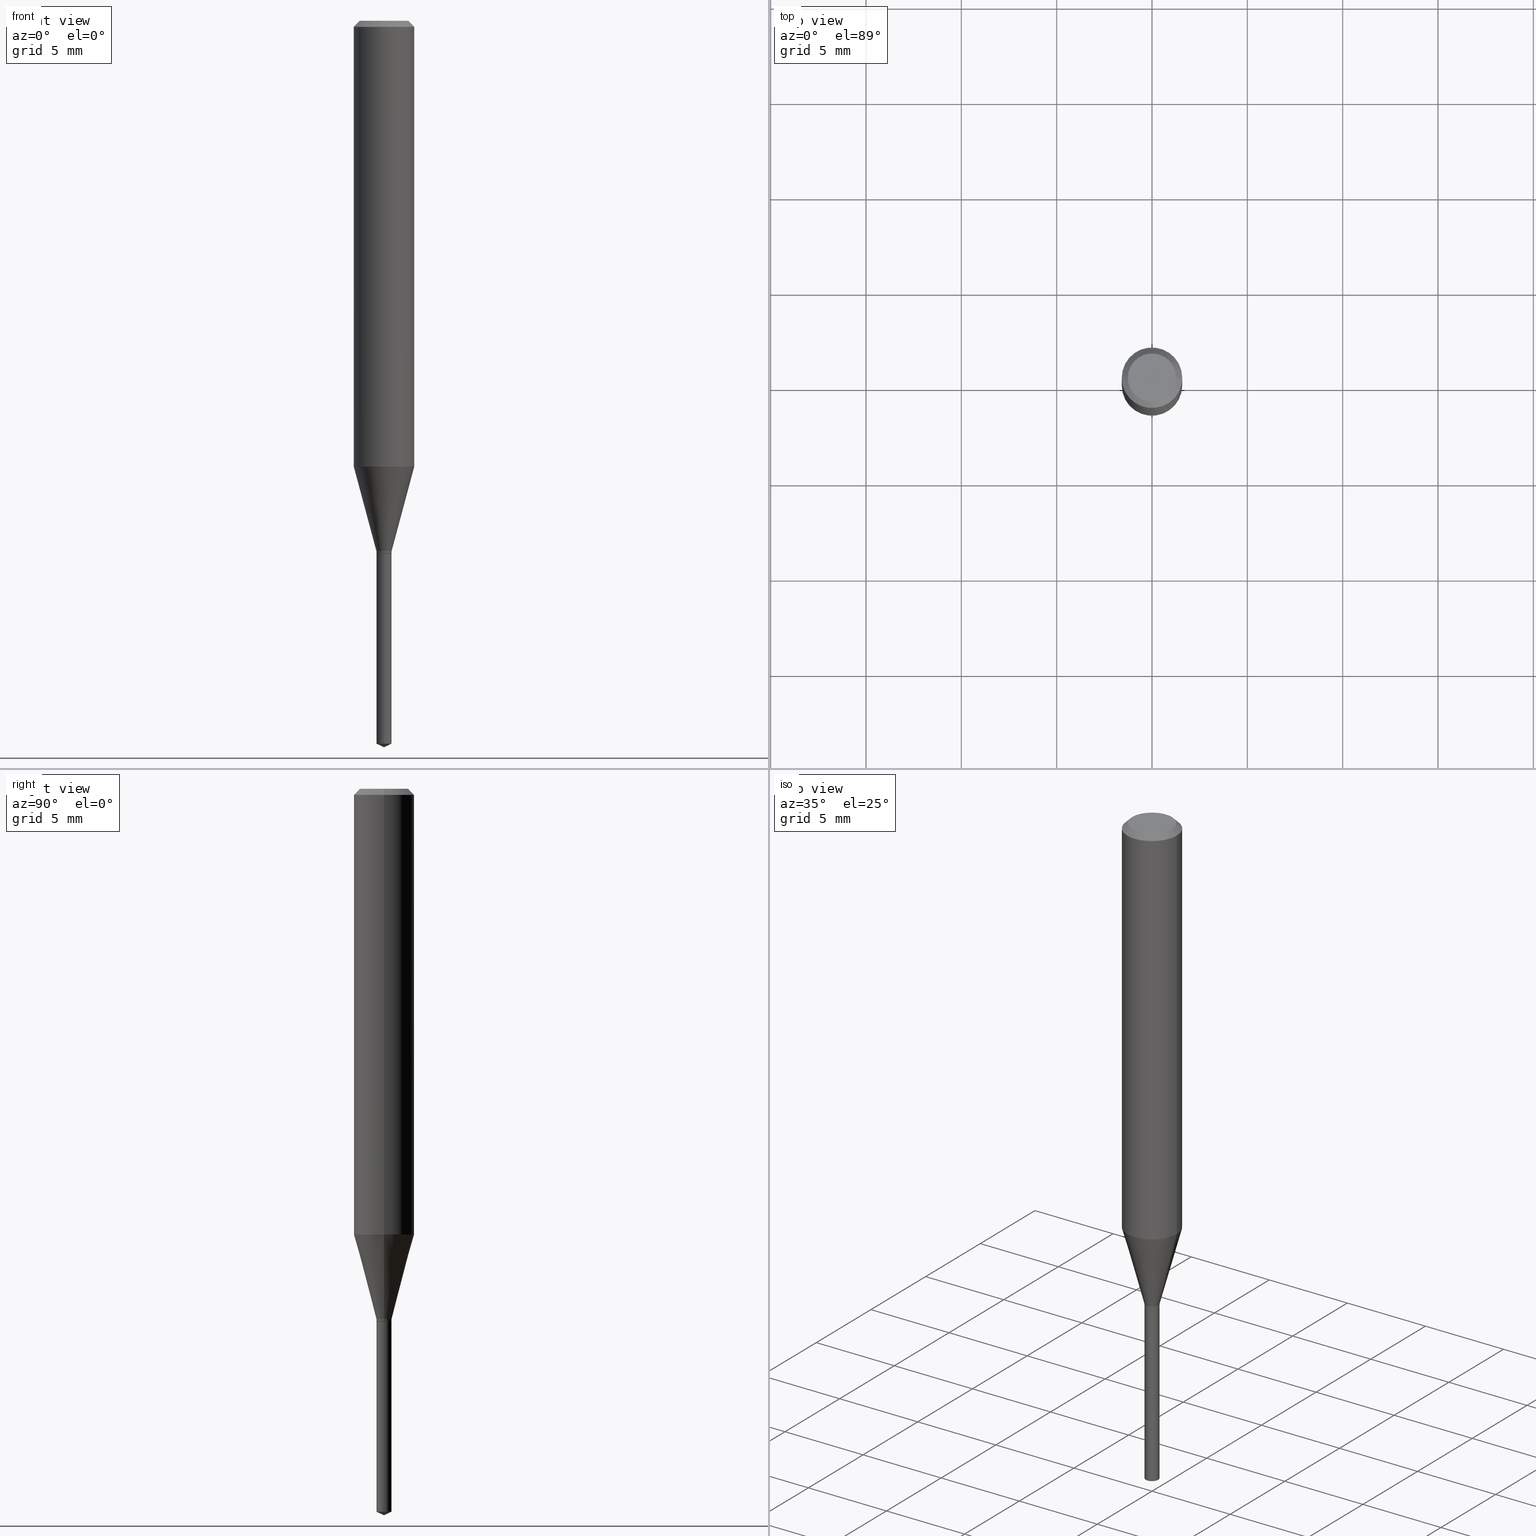
[diagram: canonical four-view strip — front | top / right | iso, engineering-drawing reading convention]
A machine part, canonical four-view strip (front | top / right | iso — engineering-drawing reading convention). The complete STEP part file that produces these views, byte-faithful:
ISO-10303-21;
HEADER;
FILE_DESCRIPTION (( 'STEP AP203' ),
    '1' );
FILE_NAME ('07307.STEP',
    '2024-04-23T20:20:42',
    ( '' ),
    ( '' ),
    'SwSTEP 2.0',
    'SolidWorks 2023',
    '' );
FILE_SCHEMA (( 'CONFIG_CONTROL_DESIGN' ));
ENDSEC;

DATA;
#1 = CYLINDRICAL_SURFACE ( 'NONE', #293, 0.06250000000000005551 ) ;
#2 = ADVANCED_FACE ( 'NONE', ( #195 ), #189, .T. ) ;
#3 = AXIS2_PLACEMENT_3D ( 'NONE', #207, #251, #433 ) ;
#4 = DIRECTION ( 'NONE',  ( -2.445399690415121530E-29, 3.491580316559632610E-15, 1.000000000000000000 ) ) ;
#5 = ORIENTED_EDGE ( 'NONE', *, *, #149, .F. ) ;
#6 = DIRECTION ( 'NONE',  ( 1.000000000000000000, -6.982962677686252511E-15, 0.000000000000000000 ) ) ;
#7 = MANIFOLD_SOLID_BREP ( 'Body-Move/Copy2[1]', #309 ) ;
#8 = SHAPE_DEFINITION_REPRESENTATION ( #471, #105 ) ;
#9 = ADVANCED_FACE ( 'NONE', ( #484 ), #414, .F. ) ;
#10 = CARTESIAN_POINT ( 'NONE',  ( 2.690015686803650369E-29, -3.840629472727460101E-15, -1.100000000000000089 ) ) ;
#11 = AXIS2_PLACEMENT_3D ( 'NONE', #411, #33, #336 ) ;
#12 = AXIS2_PLACEMENT_3D ( 'NONE', #77, #191, #448 ) ;
#13 = DIRECTION ( 'NONE',  ( -2.445468806185136877E-29, 3.491481338843145188E-15, 1.000000000000000000 ) ) ;
#14 = FACE_OUTER_BOUND ( 'NONE', #290, .T. ) ;
#15 = ADVANCED_FACE ( 'NONE', ( #154 ), #1, .T. ) ;
#16 = DIRECTION ( 'NONE',  ( 2.438088387897960049E-29, -3.491481338843145188E-15, -1.000000000000000000 ) ) ;
#17 = VERTEX_POINT ( 'NONE', #374 ) ;
#18 = FACE_OUTER_BOUND ( 'NONE', #179, .T. ) ;
#19 = CONICAL_SURFACE ( 'NONE', #461, 0.06250000000000000000, 0.7853981633974452814 ) ;
#20 = ORIENTED_EDGE ( 'NONE', *, *, #213, .F. ) ;
#21 = CARTESIAN_POINT ( 'NONE',  ( 3.056836007731440977E-31, -4.364351673553961068E-17, -0.01250000000000008223 ) ) ;
#22 = VERTEX_POINT ( 'NONE', #115 ) ;
#23 = CARTESIAN_POINT ( 'NONE',  ( -0.06250000000000000000, -1.184279757891998426E-15, -0.01250000000000008223 ) ) ;
#24 = VERTEX_POINT ( 'NONE', #259 ) ;
#25 = ADVANCED_FACE ( 'NONE', ( #298 ), #344, .T. ) ;
#26 = DIRECTION ( 'NONE',  ( 1.000000000000000000, -6.982962677686265922E-15, 4.875957971899673662E-29 ) ) ;
#27 = VECTOR ( 'NONE', #135, 39.37007874015748143 ) ;
#28 = ORIENTED_EDGE ( 'NONE', *, *, #313, .F. ) ;
#29 = CIRCLE ( 'NONE', #3, 0.01559999999999999928 ) ;
#30 = CYLINDRICAL_SURFACE ( 'NONE', #143, 0.01559999999999999928 ) ;
#31 = DIRECTION ( 'NONE',  ( 1.000000000000000000, -6.982962677686265922E-15, 4.876176775795935793E-29 ) ) ;
#32 = DIRECTION ( 'NONE',  ( -2.445468806185136597E-29, 3.491481338843145583E-15, 1.000000000000000000 ) ) ;
#33 = DIRECTION ( 'NONE',  ( -2.445468806185136597E-29, 3.491481338843145583E-15, 1.000000000000000000 ) ) ;
#34 = ADVANCED_FACE ( 'NONE', ( #482 ), #338, .F. ) ;
#35 = DATE_AND_TIME ( #337, #407 ) ;
#36 = CARTESIAN_POINT ( 'NONE',  ( 2.690015686803650369E-29, -3.840629472727460101E-15, -1.100000000000000089 ) ) ;
#37 = AXIS2_PLACEMENT_3D ( 'NONE', #235, #87, #172 ) ;
#38 = VECTOR ( 'NONE', #139, 39.37007874015748143 ) ;
#39 = EDGE_CURVE ( 'NONE', #120, #40, #368, .T. ) ;
#40 = VERTEX_POINT ( 'NONE', #292 ) ;
#41 = PERSON_AND_ORGANIZATION ( #395, #228 ) ;
#42 = DIRECTION ( 'NONE',  ( -2.445399690415121810E-29, 3.491580316559632610E-15, 1.000000000000000000 ) ) ;
#43 = FACE_OUTER_BOUND ( 'NONE', #242, .T. ) ;
#44 = CIRCLE ( 'NONE', #76, 0.01559999999999999928 ) ;
#45 = DIRECTION ( 'NONE',  ( -2.445468806185136597E-29, 3.491481338843145583E-15, 1.000000000000000000 ) ) ;
#46 = CARTESIAN_POINT ( 'NONE',  ( 1.108446667786121334E-16, 0.01559999999999478991, -1.492725600532782027 ) ) ;
#47 = CARTESIAN_POINT ( 'NONE',  ( 0.01559999999999999928, -3.933153728206803735E-15, -1.095300000000000162 ) ) ;
#48 = ORIENTED_EDGE ( 'NONE', *, *, #321, .T. ) ;
#49 = DATE_AND_TIME ( #289, #453 ) ;
#50 = CIRCLE ( 'NONE', #69, 0.01509999999999999884 ) ;
#51 = CARTESIAN_POINT ( 'NONE',  ( 1.108446667786025068E-16, 0.01559999999999615687, -1.100000000000000089 ) ) ;
#52 = EDGE_CURVE ( 'NONE', #440, #120, #261, .T. ) ;
#53 = FACE_OUTER_BOUND ( 'NONE', #197, .T. ) ;
#54 = VERTEX_POINT ( 'NONE', #108 ) ;
#55 = EDGE_CURVE ( 'NONE', #54, #437, #489, .T. ) ;
#56 = CARTESIAN_POINT ( 'NONE',  ( 2.688792952400557567E-29, -3.838883732058038598E-15, -1.099499999999999922 ) ) ;
#57 = ORIENTED_EDGE ( 'NONE', *, *, #321, .F. ) ;
#58 = VECTOR ( 'NONE', #272, 39.37007874015748143 ) ;
#59 = LINE ( 'NONE', #94, #132 ) ;
#60 = ORIENTED_EDGE ( 'NONE', *, *, #61, .T. ) ;
#61 = EDGE_CURVE ( 'NONE', #106, #54, #131, .T. ) ;
#62 = CARTESIAN_POINT ( 'NONE',  ( 2.678521983414580949E-29, -3.824219510434897968E-15, -1.095300000000000162 ) ) ;
#63 = ORIENTED_EDGE ( 'NONE', *, *, #258, .T. ) ;
#64 = DIRECTION ( 'NONE',  ( 1.000000000000000000, -6.982962677686281699E-15, 0.000000000000000000 ) ) ;
#65 = ORIENTED_EDGE ( 'NONE', *, *, #455, .F. ) ;
#66 = PERSON_AND_ORGANIZATION_ROLE ( 'creator' ) ;
#67 = ORIENTED_EDGE ( 'NONE', *, *, #296, .T. ) ;
#68 = ADVANCED_FACE ( 'NONE', ( #117 ), #380, .T. ) ;
#69 = AXIS2_PLACEMENT_3D ( 'NONE', #277, #320, #64 ) ;
#70 = APPROVAL_DATE_TIME ( #107, #219 ) ;
#71 = CARTESIAN_POINT ( 'NONE',  ( 2.690015686803650369E-29, -3.840629472727460101E-15, -1.100000000000000089 ) ) ;
#72 = EDGE_CURVE ( 'NONE', #444, #106, #449, .T. ) ;
#73 = DIRECTION ( 'NONE',  ( -2.445468806185136877E-29, 3.491481338843145188E-15, 1.000000000000000000 ) ) ;
#74 = DIRECTION ( 'NONE',  ( 2.445399690415121250E-29, -3.491580316559632610E-15, -1.000000000000000000 ) ) ;
#75 = AXIS2_PLACEMENT_3D ( 'NONE', #384, #171, #347 ) ;
#76 = AXIS2_PLACEMENT_3D ( 'NONE', #56, #399, #327 ) ;
#77 = CARTESIAN_POINT ( 'NONE',  ( 0.000000000000000000, 0.000000000000000000, 0.000000000000000000 ) ) ;
#78 = CC_DESIGN_DATE_AND_TIME_ASSIGNMENT ( #194, #446, ( #92 ) ) ;
#79 = DIRECTION ( 'NONE',  ( 1.000000000000000000, -6.982962677686264344E-15, 0.000000000000000000 ) ) ;
#80 = CARTESIAN_POINT ( 'NONE',  ( -0.06250000000000000000, 3.927916506198521080E-16, -0.01250000000000008223 ) ) ;
#81 = DIRECTION ( 'NONE',  ( -6.982962677686265922E-15, -1.000000000000000000, 0.000000000000000000 ) ) ;
#82 = ORIENTED_EDGE ( 'NONE', *, *, #271, .T. ) ;
#83 = CONICAL_SURFACE ( 'NONE', #234, 84.42940631927216089, 1.134464013796306014 ) ;
#84 = CALENDAR_DATE ( 2024, 23, 4 ) ;
#85 = DIRECTION ( 'NONE',  ( 1.000000000000000000, -6.982962677686281699E-15, 0.000000000000000000 ) ) ;
#86 = DIMENSIONAL_EXPONENTS ( 1.000000000000000000, 0.000000000000000000, 0.000000000000000000, 0.000000000000000000, 0.000000000000000000, 0.000000000000000000, 0.000000000000000000 ) ;
#87 = DIRECTION ( 'NONE',  ( -2.445468806185136597E-29, 3.491481338843145583E-15, 1.000000000000000000 ) ) ;
#88 = EDGE_LOOP ( 'NONE', ( #63, #332, #364, #65 ) ) ;
#89 = DIRECTION ( 'NONE',  ( -2.445468806185136597E-29, 3.491481338843145583E-15, 1.000000000000000000 ) ) ;
#90 = CC_DESIGN_APPROVAL ( #278, ( #240 ) ) ;
#91 = DIRECTION ( 'NONE',  ( 1.000000000000000000, -6.982962677686281699E-15, 0.000000000000000000 ) ) ;
#92 = PRODUCT_DEFINITION ( 'UNKNOWN', '', #185, #170 ) ;
#93 = ORIENTED_EDGE ( 'NONE', *, *, #72, .T. ) ;
#94 = CARTESIAN_POINT ( 'NONE',  ( -0.01559999999999999928, 1.108446667785756239E-16, -7.673538740797652489E-31 ) ) ;
#95 = EDGE_LOOP ( 'NONE', ( #283, #400, #102, #130 ) ) ;
#96 = CARTESIAN_POINT ( 'NONE',  ( 3.668099535622682155E-29, -5.237370474839448718E-15, -1.500000000000000222 ) ) ;
#97 = VERTEX_POINT ( 'NONE', #223 ) ;
#98 = ADVANCED_FACE ( 'NONE', ( #331 ), #467, .T. ) ;
#99 = CIRCLE ( 'NONE', #37, 0.04999999999999999584 ) ;
#100 = FACE_OUTER_BOUND ( 'NONE', #174, .T. ) ;
#101 = AXIS2_PLACEMENT_3D ( 'NONE', #62, #476, #142 ) ;
#102 = ORIENTED_EDGE ( 'NONE', *, *, #157, .F. ) ;
#103 = CARTESIAN_POINT ( 'NONE',  ( 0.01509999999999999884, -3.946072209160522861E-15, -1.100000000000000089 ) ) ;
#104 = EDGE_LOOP ( 'NONE', ( #295, #217, #324, #478 ) ) ;
#105 = ADVANCED_BREP_SHAPE_REPRESENTATION ( '07307', ( #7, #328, #12 ), #326 ) ;
#106 = VERTEX_POINT ( 'NONE', #274 ) ;
#107 = DATE_AND_TIME ( #375, #205 ) ;
#108 = CARTESIAN_POINT ( 'NONE',  ( 0.06250000000000011102, -3.649529586103976953E-15, -0.9202668171250198981 ) ) ;
#109 = CC_DESIGN_PERSON_AND_ORGANIZATION_ASSIGNMENT ( #450, #114, ( #185 ) ) ;
#110 = COORDINATED_UNIVERSAL_TIME_OFFSET ( 5, 0, .BEHIND. ) ;
#111 = DIRECTION ( 'NONE',  ( 1.000000000000000000, -6.982962677686266711E-15, 4.876176775795935793E-29 ) ) ;
#112 = CARTESIAN_POINT ( 'NONE',  ( -0.01559999999999999928, -3.713374843656321925E-15, -1.095300000000000162 ) ) ;
#113 = EDGE_CURVE ( 'NONE', #106, #322, #238, .T. ) ;
#114 = PERSON_AND_ORGANIZATION_ROLE ( 'creator' ) ;
#115 = CARTESIAN_POINT ( 'NONE',  ( -0.04999999999999999584, 3.709698922520826725E-16, -1.592040838894077649E-18 ) ) ;
#116 = LOCAL_TIME ( 16, 20, 42.00000000000000000, #294 ) ;
#117 = FACE_OUTER_BOUND ( 'NONE', #104, .T. ) ;
#118 = EDGE_CURVE ( 'NONE', #159, #40, #268, .T. ) ;
#119 = DIRECTION ( 'NONE',  ( -2.445468806185136597E-29, 3.491481338843145583E-15, 1.000000000000000000 ) ) ;
#120 = VERTEX_POINT ( 'NONE', #427 ) ;
#121 = CYLINDRICAL_SURFACE ( 'NONE', #275, 0.01559999999999999928 ) ;
#122 = ADVANCED_FACE ( 'NONE', ( #14 ), #121, .T. ) ;
#123 = VECTOR ( 'NONE', #73, 39.37007874015748143 ) ;
#124 = VECTOR ( 'NONE', #428, 39.37007874015748143 ) ;
#125 = APPROVAL_DATE_TIME ( #464, #278 ) ;
#126 = DIRECTION ( 'NONE',  ( 1.000000000000000000, -6.982962677686266711E-15, 0.000000000000000000 ) ) ;
#127 = DIRECTION ( 'NONE',  ( 6.439704144416999588E-15, 0.9063077870366479383, 0.4226182617407037156 ) ) ;
#128 = CC_DESIGN_PERSON_AND_ORGANIZATION_ASSIGNMENT ( #41, #341, ( #240 ) ) ;
#129 = DIRECTION ( 'NONE',  ( 1.000000000000000000, -6.982962677686252511E-15, 0.000000000000000000 ) ) ;
#130 = ORIENTED_EDGE ( 'NONE', *, *, #55, .F. ) ;
#131 = CIRCLE ( 'NONE', #406, 0.06250000000000012490 ) ;
#132 = VECTOR ( 'NONE', #357, 39.37007874015748143 ) ;
#133 = LINE ( 'NONE', #96, #155 ) ;
#134 = EDGE_LOOP ( 'NONE', ( #215, #60, #193, #220 ) ) ;
#135 = DIRECTION ( 'NONE',  ( -0.7071067811865453523, 2.468850131082234184E-15, -0.7071067811865496822 ) ) ;
#136 = ADVANCED_FACE ( 'NONE', ( #201 ), #263, .T. ) ;
#137 = ORIENTED_EDGE ( 'NONE', *, *, #149, .T. ) ;
#138 = APPLICATION_CONTEXT ( 'configuration controlled 3d designs of mechanical parts and assemblies' ) ;
#139 = DIRECTION ( 'NONE',  ( 0.7071067811865453523, -7.319954787623248157E-15, -0.7071067811865496822 ) ) ;
#140 = VERTEX_POINT ( 'NONE', #47 ) ;
#141 = AXIS2_PLACEMENT_3D ( 'NONE', #456, #45, #6 ) ;
#142 = DIRECTION ( 'NONE',  ( 1.000000000000000000, -6.982962677686252511E-15, 0.000000000000000000 ) ) ;
#143 = AXIS2_PLACEMENT_3D ( 'NONE', #373, #32, #417 ) ;
#144 = ORIENTED_EDGE ( 'NONE', *, *, #190, .T. ) ;
#145 = EDGE_CURVE ( 'NONE', #159, #440, #199, .T. ) ;
#146 = CARTESIAN_POINT ( 'NONE',  ( 0.01559999999999999928, -1.089342177719057547E-16, 7.606835770241659199E-31 ) ) ;
#147 = ORIENTED_EDGE ( 'NONE', *, *, #72, .F. ) ;
#148 = CC_DESIGN_PERSON_AND_ORGANIZATION_ASSIGNMENT ( #221, #262, ( #185 ) ) ;
#149 = EDGE_CURVE ( 'NONE', #22, #409, #99, .T. ) ;
#150 =( NAMED_UNIT ( * ) SI_UNIT ( $, .STERADIAN. ) SOLID_ANGLE_UNIT ( ) );
#151 = DIRECTION ( 'NONE',  ( 6.982962677686265922E-15, 1.000000000000000000, -3.491580316559632610E-15 ) ) ;
#152 = PERSON_AND_ORGANIZATION ( #395, #228 ) ;
#153 = AXIS2_PLACEMENT_3D ( 'NONE', #462, #387, #126 ) ;
#154 = FACE_OUTER_BOUND ( 'NONE', #134, .T. ) ;
#155 = VECTOR ( 'NONE', #173, 39.37007874015748143 ) ;
#156 = CARTESIAN_POINT ( 'NONE',  ( 0.000000000000000000, 0.000000000000000000, 0.000000000000000000 ) ) ;
#157 = EDGE_CURVE ( 'NONE', #437, #322, #175, .T. ) ;
#158 =( LENGTH_UNIT ( ) NAMED_UNIT ( * ) SI_UNIT ( $, .METRE. ) );
#159 = VERTEX_POINT ( 'NONE', #46 ) ;
#160 = DIRECTION ( 'NONE',  ( -2.445399690415121530E-29, 3.491580316559632610E-15, 1.000000000000000000 ) ) ;
#161 = AXIS2_PLACEMENT_3D ( 'NONE', #166, #89, #206 ) ;
#162 = DIRECTION ( 'NONE',  ( 0.2588190451025213501, 1.565188264969621968E-15, 0.9659258262890682012 ) ) ;
#163 = ORIENTED_EDGE ( 'NONE', *, *, #118, .F. ) ;
#164 = CC_DESIGN_PERSON_AND_ORGANIZATION_ASSIGNMENT ( #152, #66, ( #92 ) ) ;
#165 = CARTESIAN_POINT ( 'NONE',  ( 3.650386748764607710E-29, -5.211862449356783133E-15, -1.492725600532782027 ) ) ;
#166 = CARTESIAN_POINT ( 'NONE',  ( 0.000000000000000000, 0.000000000000000000, 0.000000000000000000 ) ) ;
#167 = EDGE_LOOP ( 'NONE', ( #442, #306 ) ) ;
#168 = CIRCLE ( 'NONE', #393, 0.01559999999999999928 ) ;
#169 = AXIS2_PLACEMENT_3D ( 'NONE', #214, #474, #184 ) ;
#170 = DESIGN_CONTEXT ( 'detailed design', #182, 'design' ) ;
#171 = DIRECTION ( 'NONE',  ( -2.445399690415121530E-29, 3.491580316559632610E-15, 1.000000000000000000 ) ) ;
#172 = DIRECTION ( 'NONE',  ( 1.000000000000000000, -6.982962677686265922E-15, 4.875957971899673662E-29 ) ) ;
#173 = DIRECTION ( 'NONE',  ( -6.328713451373344135E-15, -0.9063077870366450517, 0.4226182617407100439 ) ) ;
#174 = EDGE_LOOP ( 'NONE', ( #244, #93, #481, #230 ) ) ;
#175 = CIRCLE ( 'NONE', #153, 0.06250000000000000000 ) ;
#176 = CARTESIAN_POINT ( 'NONE',  ( 3.893286209682126177E-47, -5.558580879666067980E-33, -1.592040838891559689E-18 ) ) ;
#177 = ORIENTED_EDGE ( 'NONE', *, *, #426, .T. ) ;
#178 = CARTESIAN_POINT ( 'NONE',  ( 1.946643104841063088E-47, -2.779290439833033990E-33, -7.960204194457798443E-19 ) ) ;
#179 = EDGE_LOOP ( 'NONE', ( #137, #177 ) ) ;
#180 = DIRECTION ( 'NONE',  ( 2.445468806185136597E-29, -3.491481338843145583E-15, -1.000000000000000000 ) ) ;
#181 = ORIENTED_EDGE ( 'NONE', *, *, #339, .F. ) ;
#182 = APPLICATION_CONTEXT ( 'configuration controlled 3d designs of mechanical parts and assemblies' ) ;
#183 = VECTOR ( 'NONE', #162, 39.37007874015747433 ) ;
#184 = DIRECTION ( 'NONE',  ( 1.000000000000000000, -6.982962677686252511E-15, 0.000000000000000000 ) ) ;
#185 = PRODUCT_DEFINITION_FORMATION_WITH_SPECIFIED_SOURCE ( 'ANY', '', #463, .NOT_KNOWN. ) ;
#186 = EDGE_LOOP ( 'NONE', ( #279, #67, #48, #366 ) ) ;
#187 = ADVANCED_FACE ( 'NONE', ( #43 ), #333, .T. ) ;
#188 = DIRECTION ( 'NONE',  ( -6.982962677686265922E-15, -1.000000000000000000, 0.000000000000000000 ) ) ;
#189 = CYLINDRICAL_SURFACE ( 'NONE', #459, 0.01559999999999999928 ) ;
#190 = EDGE_CURVE ( 'NONE', #140, #54, #237, .T. ) ;
#191 = DIRECTION ( 'NONE',  ( 0.000000000000000000, 0.000000000000000000, 1.000000000000000000 ) ) ;
#192 = AXIS2_PLACEMENT_3D ( 'NONE', #308, #4, #231 ) ;
#193 = ORIENTED_EDGE ( 'NONE', *, *, #55, .T. ) ;
#194 = DATE_AND_TIME ( #378, #116 ) ;
#195 = FACE_OUTER_BOUND ( 'NONE', #88, .T. ) ;
#196 = LENGTH_MEASURE_WITH_UNIT ( LENGTH_MEASURE( 0.02539999999999999897 ), #158 );
#197 = EDGE_LOOP ( 'NONE', ( #402, #475, #329, #358 ) ) ;
#198 = CARTESIAN_POINT ( 'NONE',  ( 0.01559999999999999928, -3.933153728206803735E-15, -1.095300000000000162 ) ) ;
#199 = CIRCLE ( 'NONE', #75, 0.01559999999999999928 ) ;
#200 = AXIS2_PLACEMENT_3D ( 'NONE', #210, #401, #280 ) ;
#201 = FACE_OUTER_BOUND ( 'NONE', #398, .T. ) ;
#202 = CARTESIAN_POINT ( 'NONE',  ( 2.690015686803650369E-29, -3.840629472727460101E-15, -1.100000000000000089 ) ) ;
#203 = ORIENTED_EDGE ( 'NONE', *, *, #412, .F. ) ;
#204 = CARTESIAN_POINT ( 'NONE',  ( 2.688792952400557567E-29, -3.838883732058038598E-15, -1.099499999999999922 ) ) ;
#205 = LOCAL_TIME ( 16, 20, 42.00000000000000000, #110 ) ;
#206 = DIRECTION ( 'NONE',  ( 1.000000000000000000, -6.982962677686267499E-15, 4.876176775795936353E-29 ) ) ;
#207 = CARTESIAN_POINT ( 'NONE',  ( 2.690015686803650369E-29, -3.840629472727460101E-15, -1.100000000000000089 ) ) ;
#208 = ORIENTED_EDGE ( 'NONE', *, *, #271, .F. ) ;
#209 = ADVANCED_FACE ( 'NONE', ( #389 ), #83, .T. ) ;
#210 = CARTESIAN_POINT ( 'NONE',  ( 2.250483794646517689E-29, -3.213094418748584889E-15, -0.9202668171250198981 ) ) ;
#211 = ORIENTED_EDGE ( 'NONE', *, *, #391, .F. ) ;
#212 = CONICAL_SURFACE ( 'NONE', #352, 0.06250000000000000000, 0.7853981633974452814 ) ;
#213 = EDGE_CURVE ( 'NONE', #440, #159, #168, .T. ) ;
#214 = CARTESIAN_POINT ( 'NONE',  ( 2.678521983414580949E-29, -3.824219510434897968E-15, -1.095300000000000162 ) ) ;
#215 = ORIENTED_EDGE ( 'NONE', *, *, #113, .F. ) ;
#216 = CARTESIAN_POINT ( 'NONE',  ( 2.690015686803650369E-29, -3.840629472727460101E-15, -1.100000000000000089 ) ) ;
#217 = ORIENTED_EDGE ( 'NONE', *, *, #118, .T. ) ;
#218 = DIRECTION ( 'NONE',  ( -2.445468806185136597E-29, 3.491481338843145583E-15, 1.000000000000000000 ) ) ;
#219 = APPROVAL ( #408, 'UNSPECIFIED' ) ;
#220 = ORIENTED_EDGE ( 'NONE', *, *, #394, .F. ) ;
#221 = PERSON_AND_ORGANIZATION ( #395, #228 ) ;
#222 = CIRCLE ( 'NONE', #200, 0.06250000000000012490 ) ;
#223 = CARTESIAN_POINT ( 'NONE',  ( 0.01559999999999999928, -3.947817949829943576E-15, -1.099499999999999922 ) ) ;
#224 = CARTESIAN_POINT ( 'NONE',  ( 0.000000000000000000, 0.000000000000000000, 0.000000000000000000 ) ) ;
#225 = APPROVAL_ROLE ( '' ) ;
#226 = DIRECTION ( 'NONE',  ( -2.445468806185136597E-29, 3.491481338843145583E-15, 1.000000000000000000 ) ) ;
#227 = PERSON_AND_ORGANIZATION_ROLE ( 'design_owner' ) ;
#228 = ORGANIZATION ( 'UNSPECIFIED', 'UNSPECIFIED', '' ) ;
#229 = CARTESIAN_POINT ( 'NONE',  ( 0.06250000000000005551, -4.364351673553921131E-16, 3.047610484872463023E-30 ) ) ;
#230 = ORIENTED_EDGE ( 'NONE', *, *, #190, .F. ) ;
#231 = DIRECTION ( 'NONE',  ( -6.982962677686267499E-15, -1.000000000000000000, 3.520397390770544589E-15 ) ) ;
#232 = EDGE_CURVE ( 'NONE', #140, #444, #350, .T. ) ;
#233 = DIRECTION ( 'NONE',  ( 1.000000000000000000, -6.982962677686252511E-15, 0.000000000000000000 ) ) ;
#234 = AXIS2_PLACEMENT_3D ( 'NONE', #305, #269, #465 ) ;
#235 = CARTESIAN_POINT ( 'NONE',  ( 3.893286209682126177E-47, -5.558580879666067980E-33, -1.592040838891559689E-18 ) ) ;
#236 = EDGE_CURVE ( 'NONE', #288, #24, #307, .T. ) ;
#237 = LINE ( 'NONE', #198, #183 ) ;
#238 = LINE ( 'NONE', #349, #421 ) ;
#239 = AXIS2_PLACEMENT_3D ( 'NONE', #71, #418, #31 ) ;
#240 = SECURITY_CLASSIFICATION ( '', '', #486 ) ;
#241 = DIRECTION ( 'NONE',  ( -1.000000000000000000, 6.982962677686266711E-15, 0.000000000000000000 ) ) ;
#242 = EDGE_LOOP ( 'NONE', ( #147, #457, #144, #470 ) ) ;
#243 = CARTESIAN_POINT ( 'NONE',  ( 0.01509999999999999884, -3.946072209160522861E-15, -1.100000000000000089 ) ) ;
#244 = ORIENTED_EDGE ( 'NONE', *, *, #232, .T. ) ;
#245 = ADVANCED_FACE ( 'NONE', ( #353 ), #415, .T. ) ;
#246 = CARTESIAN_POINT ( 'NONE',  ( 0.04999999999999999584, -4.077247707424184212E-16, -1.592040838888913461E-18 ) ) ;
#247 = ORIENTED_EDGE ( 'NONE', *, *, #52, .T. ) ;
#248 = AXIS2_PLACEMENT_3D ( 'NONE', #216, #396, #91 ) ;
#249 = DIRECTION ( 'NONE',  ( 0.7071067811865218156, -2.468850131081987665E-15, 0.7071067811865732189 ) ) ;
#250 = EDGE_LOOP ( 'NONE', ( #208, #254, #252 ) ) ;
#251 = DIRECTION ( 'NONE',  ( -2.445399690415121530E-29, 3.491580316559632610E-15, 1.000000000000000000 ) ) ;
#252 = ORIENTED_EDGE ( 'NONE', *, *, #145, .F. ) ;
#253 = FACE_OUTER_BOUND ( 'NONE', #371, .T. ) ;
#254 = ORIENTED_EDGE ( 'NONE', *, *, #367, .T. ) ;
#255 = AXIS2_PLACEMENT_3D ( 'NONE', #348, #119, #233 ) ;
#256 = CIRCLE ( 'NONE', #377, 0.04999999999999999584 ) ;
#257 = CARTESIAN_POINT ( 'NONE',  ( 2.690015686803650369E-29, -3.840629472727460101E-15, -1.100000000000000089 ) ) ;
#258 = EDGE_CURVE ( 'NONE', #97, #24, #477, .T. ) ;
#259 = CARTESIAN_POINT ( 'NONE',  ( -0.01559999999999999928, -3.720706954467892240E-15, -1.099499999999999922 ) ) ;
#260 = MECHANICAL_CONTEXT ( 'NONE', #138, 'mechanical' ) ;
#261 = LINE ( 'NONE', #304, #285 ) ;
#262 = PERSON_AND_ORGANIZATION_ROLE ( 'design_supplier' ) ;
#263 = CONICAL_SURFACE ( 'NONE', #192, 84.42940631927216089, 1.134464013796306014 ) ;
#264 = VECTOR ( 'NONE', #249, 39.37007874015748143 ) ;
#265 = DIRECTION ( 'NONE',  ( -2.445468806185136597E-29, 3.491481338843145583E-15, 1.000000000000000000 ) ) ;
#266 = DIRECTION ( 'NONE',  ( -2.445399690415121530E-29, 3.491580316559632610E-15, 1.000000000000000000 ) ) ;
#267 = DATE_TIME_ROLE ( 'classification_date' ) ;
#268 = LINE ( 'NONE', #51, #58 ) ;
#269 = DIRECTION ( 'NONE',  ( -2.445399690415121530E-29, 3.491580316559632610E-15, 1.000000000000000000 ) ) ;
#270 = VECTOR ( 'NONE', #419, 39.37007874015747433 ) ;
#271 = EDGE_CURVE ( 'NONE', #17, #159, #388, .T. ) ;
#272 = DIRECTION ( 'NONE',  ( -2.445399690415121810E-29, 3.491580316559632610E-15, 1.000000000000000000 ) ) ;
#273 = LINE ( 'NONE', #80, #27 ) ;
#274 = CARTESIAN_POINT ( 'NONE',  ( -0.06250000000000011102, -2.769005208898521090E-15, -0.9202668171250198981 ) ) ;
#275 = AXIS2_PLACEMENT_3D ( 'NONE', #10, #346, #392 ) ;
#276 = AXIS2_PLACEMENT_3D ( 'NONE', #178, #16, #403 ) ;
#277 = CARTESIAN_POINT ( 'NONE',  ( 2.690015686803650369E-29, -3.840629472727460101E-15, -1.100000000000000089 ) ) ;
#278 = APPROVAL ( #343, 'UNSPECIFIED' ) ;
#279 = ORIENTED_EDGE ( 'NONE', *, *, #236, .F. ) ;
#280 = DIRECTION ( 'NONE',  ( 1.000000000000000000, -6.982962677686264344E-15, 0.000000000000000000 ) ) ;
#281 = ORIENTED_EDGE ( 'NONE', *, *, #284, .T. ) ;
#282 = CARTESIAN_POINT ( 'NONE',  ( 0.06250000000000000000, -4.800786840909312308E-16, -0.01250000000000008223 ) ) ;
#283 = ORIENTED_EDGE ( 'NONE', *, *, #330, .T. ) ;
#284 = EDGE_CURVE ( 'NONE', #22, #322, #273, .T. ) ;
#285 = VECTOR ( 'NONE', #42, 39.37007874015748143 ) ;
#286 = ADVANCED_FACE ( 'NONE', ( #355 ), #212, .T. ) ;
#287 = CARTESIAN_POINT ( 'NONE',  ( -1.089342177718692452E-16, -0.01560000000000521213, -1.492725600532782027 ) ) ;
#288 = VERTEX_POINT ( 'NONE', #361 ) ;
#289 = CALENDAR_DATE ( 2024, 23, 4 ) ;
#290 = EDGE_LOOP ( 'NONE', ( #163, #432, #247, #181 ) ) ;
#291 = APPLICATION_PROTOCOL_DEFINITION ( 'international standard', 'config_control_design', 1994, #138 ) ;
#292 = CARTESIAN_POINT ( 'NONE',  ( 1.108446667786121827E-16, 0.01559999999999615687, -1.100000000000000089 ) ) ;
#293 = AXIS2_PLACEMENT_3D ( 'NONE', #156, #376, #451 ) ;
#294 = COORDINATED_UNIVERSAL_TIME_OFFSET ( 5, 0, .BEHIND. ) ;
#295 = ORIENTED_EDGE ( 'NONE', *, *, #213, .T. ) ;
#296 = EDGE_CURVE ( 'NONE', #288, #315, #422, .T. ) ;
#297 =( CONVERSION_BASED_UNIT ( 'INCH', #196 ) LENGTH_UNIT ( ) NAMED_UNIT ( #86 ) );
#298 = FACE_OUTER_BOUND ( 'NONE', #186, .T. ) ;
#299 = APPROVAL_ROLE ( '' ) ;
#300 = ORIENTED_EDGE ( 'NONE', *, *, #351, .T. ) ;
#301 = CC_DESIGN_DATE_AND_TIME_ASSIGNMENT ( #49, #267, ( #240 ) ) ;
#302 = CLOSED_SHELL ( 'NONE', ( #245, #354, #98, #438, #2, #483, #187, #15, #286, #379, #34, #25 ) ) ;
#303 = LOCAL_TIME ( 16, 20, 42.00000000000000000, #385 ) ;
#304 = CARTESIAN_POINT ( 'NONE',  ( -1.089342177718788348E-16, -0.01560000000000383996, -1.100000000000000089 ) ) ;
#305 = CARTESIAN_POINT ( 'NONE',  ( -9.260740279983036507E-28, 1.322265303911854087E-13, 37.87007874015748143 ) ) ;
#306 = ORIENTED_EDGE ( 'NONE', *, *, #339, .T. ) ;
#307 = LINE ( 'NONE', #458, #359 ) ;
#308 = CARTESIAN_POINT ( 'NONE',  ( -9.260740279983036507E-28, 1.322265303911854087E-13, 37.87007874015748143 ) ) ;
#309 = CLOSED_SHELL ( 'NONE', ( #68, #136, #209, #122, #9 ) ) ;
#310 = CONICAL_SURFACE ( 'NONE', #101, 0.01559999999999999928, 0.2617993877991500740 ) ;
#311 = CARTESIAN_POINT ( 'NONE',  ( 3.668252923656895710E-29, -5.237152723863177100E-15, -1.500000000000000222 ) ) ;
#312 = DIRECTION ( 'NONE',  ( -2.445468806185136597E-29, 3.491481338843145583E-15, 1.000000000000000000 ) ) ;
#313 = EDGE_CURVE ( 'NONE', #409, #437, #363, .T. ) ;
#314 = DIRECTION ( 'NONE',  ( -1.000000000000000000, 6.982962677686266711E-15, 0.000000000000000000 ) ) ;
#315 = VERTEX_POINT ( 'NONE', #243 ) ;
#316 = AXIS2_PLACEMENT_3D ( 'NONE', #257, #266, #487 ) ;
#317 = CIRCLE ( 'NONE', #169, 0.01559999999999999928 ) ;
#318 = DIRECTION ( 'NONE',  ( -2.445468806185136597E-29, 3.491481338843145583E-15, 1.000000000000000000 ) ) ;
#319 = ORIENTED_EDGE ( 'NONE', *, *, #296, .F. ) ;
#320 = DIRECTION ( 'NONE',  ( -2.445468806185136597E-29, 3.491481338843145583E-15, 1.000000000000000000 ) ) ;
#321 = EDGE_CURVE ( 'NONE', #315, #97, #365, .T. ) ;
#322 = VERTEX_POINT ( 'NONE', #23 ) ;
#323 = CARTESIAN_POINT ( 'NONE',  ( 0.06250000000000000000, -4.724246415962602840E-16, -0.01250000000000008223 ) ) ;
#324 = ORIENTED_EDGE ( 'NONE', *, *, #39, .F. ) ;
#325 = AXIS2_PLACEMENT_3D ( 'NONE', #204, #312, #129 ) ;
#326 =( GEOMETRIC_REPRESENTATION_CONTEXT ( 3 ) GLOBAL_UNCERTAINTY_ASSIGNED_CONTEXT ( ( #360 ) ) GLOBAL_UNIT_ASSIGNED_CONTEXT ( ( #297, #370, #150 ) ) REPRESENTATION_CONTEXT ( 'NONE', 'WORKASPACE' ) );
#327 = DIRECTION ( 'NONE',  ( 1.000000000000000000, -6.982962677686252511E-15, 0.000000000000000000 ) ) ;
#328 = MANIFOLD_SOLID_BREP ( 'Body-Move/Copy2[2]', #302 ) ;
#329 = ORIENTED_EDGE ( 'NONE', *, *, #157, .T. ) ;
#330 = EDGE_CURVE ( 'NONE', #54, #106, #222, .T. ) ;
#331 = FACE_OUTER_BOUND ( 'NONE', #95, .T. ) ;
#332 = ORIENTED_EDGE ( 'NONE', *, *, #412, .T. ) ;
#333 = CONICAL_SURFACE ( 'NONE', #255, 0.01559999999999999928, 0.2617993877991500740 ) ;
#334 = CIRCLE ( 'NONE', #345, 0.06250000000000000000 ) ;
#335 = APPROVAL_DATE_TIME ( #35, #435 ) ;
#336 = DIRECTION ( 'NONE',  ( 1.000000000000000000, -6.982962677686281699E-15, 0.000000000000000000 ) ) ;
#337 = CALENDAR_DATE ( 2024, 23, 4 ) ;
#338 = PLANE ( 'NONE',  #239 ) ;
#339 = EDGE_CURVE ( 'NONE', #40, #120, #29, .T. ) ;
#340 = PRODUCT_RELATED_PRODUCT_CATEGORY ( 'detail', '', ( #463 ) ) ;
#341 = PERSON_AND_ORGANIZATION_ROLE ( 'classification_officer' ) ;
#342 = EDGE_LOOP ( 'NONE', ( #28, #5, #281, #404 ) ) ;
#343 = APPROVAL_STATUS ( 'not_yet_approved' ) ;
#344 = CONICAL_SURFACE ( 'NONE', #11, 0.01509999999999999884, 0.7853981633974119747 ) ;
#345 = AXIS2_PLACEMENT_3D ( 'NONE', #468, #218, #397 ) ;
#346 = DIRECTION ( 'NONE',  ( -2.445399690415121530E-29, 3.491580316559632610E-15, 1.000000000000000000 ) ) ;
#347 = DIRECTION ( 'NONE',  ( -6.982962677686265922E-15, -1.000000000000000000, 0.000000000000000000 ) ) ;
#348 = CARTESIAN_POINT ( 'NONE',  ( 2.678521983414580949E-29, -3.824219510434897968E-15, -1.095300000000000162 ) ) ;
#349 = CARTESIAN_POINT ( 'NONE',  ( -0.06250000000000005551, 4.440892098500630106E-16, -3.074334431409318916E-30 ) ) ;
#350 = CIRCLE ( 'NONE', #141, 0.01559999999999999928 ) ;
#351 = EDGE_CURVE ( 'NONE', #24, #97, #44, .T. ) ;
#352 = AXIS2_PLACEMENT_3D ( 'NONE', #430, #180, #241 ) ;
#353 = FACE_OUTER_BOUND ( 'NONE', #356, .T. ) ;
#354 = ADVANCED_FACE ( 'NONE', ( #53 ), #19, .T. ) ;
#355 = FACE_OUTER_BOUND ( 'NONE', #342, .T. ) ;
#356 = EDGE_LOOP ( 'NONE', ( #466, #390, #405, #57 ) ) ;
#357 = DIRECTION ( 'NONE',  ( -2.445468806185136877E-29, 3.491481338843145188E-15, 1.000000000000000000 ) ) ;
#358 = ORIENTED_EDGE ( 'NONE', *, *, #284, .F. ) ;
#359 = VECTOR ( 'NONE', #424, 39.37007874015748143 ) ;
#360 = UNCERTAINTY_MEASURE_WITH_UNIT (LENGTH_MEASURE( 1.000000000000000082E-05 ), #297, 'distance_accuracy_value', 'NONE');
#361 = CARTESIAN_POINT ( 'NONE',  ( -0.01509999999999999884, -3.730688292453573756E-15, -1.100000000000000089 ) ) ;
#362 = EDGE_LOOP ( 'NONE', ( #211, #319 ) ) ;
#363 = LINE ( 'NONE', #323, #38 ) ;
#364 = ORIENTED_EDGE ( 'NONE', *, *, #232, .F. ) ;
#365 = LINE ( 'NONE', #103, #264 ) ;
#366 = ORIENTED_EDGE ( 'NONE', *, *, #351, .F. ) ;
#367 = EDGE_CURVE ( 'NONE', #17, #440, #133, .T. ) ;
#368 = CIRCLE ( 'NONE', #485, 0.01559999999999999928 ) ;
#369 = CC_DESIGN_SECURITY_CLASSIFICATION ( #240, ( #185 ) ) ;
#370 =( NAMED_UNIT ( * ) PLANE_ANGLE_UNIT ( ) SI_UNIT ( $, .RADIAN. ) );
#371 = EDGE_LOOP ( 'NONE', ( #203, #300, #434, #473 ) ) ;
#372 = CC_DESIGN_PERSON_AND_ORGANIZATION_ASSIGNMENT ( #413, #227, ( #463 ) ) ;
#373 = CARTESIAN_POINT ( 'NONE',  ( 0.000000000000000000, 0.000000000000000000, 0.000000000000000000 ) ) ;
#374 = CARTESIAN_POINT ( 'NONE',  ( 3.668099535622682715E-29, -5.237370474839449507E-15, -1.500000000000000222 ) ) ;
#375 = CALENDAR_DATE ( 2024, 23, 4 ) ;
#376 = DIRECTION ( 'NONE',  ( -2.445468806185136597E-29, 3.491481338843145583E-15, 1.000000000000000000 ) ) ;
#377 = AXIS2_PLACEMENT_3D ( 'NONE', #176, #318, #26 ) ;
#378 = CALENDAR_DATE ( 2024, 23, 4 ) ;
#379 = ADVANCED_FACE ( 'NONE', ( #18 ), #472, .F. ) ;
#380 = CYLINDRICAL_SURFACE ( 'NONE', #316, 0.01559999999999999928 ) ;
#381 = APPROVAL_STATUS ( 'not_yet_approved' ) ;
#382 = CARTESIAN_POINT ( 'NONE',  ( 2.690015686803650369E-29, -3.840629472727460101E-15, -1.100000000000000089 ) ) ;
#383 = PERSON_AND_ORGANIZATION ( #395, #228 ) ;
#384 = CARTESIAN_POINT ( 'NONE',  ( 3.650386748764607710E-29, -5.211862449356783133E-15, -1.492725600532782027 ) ) ;
#385 = COORDINATED_UNIVERSAL_TIME_OFFSET ( 5, 0, .BEHIND. ) ;
#386 = APPROVAL_PERSON_ORGANIZATION ( #383, #278, #460 ) ;
#387 = DIRECTION ( 'NONE',  ( -2.445468806185136597E-29, 3.491481338843145583E-15, 1.000000000000000000 ) ) ;
#388 = LINE ( 'NONE', #311, #452 ) ;
#389 = FACE_OUTER_BOUND ( 'NONE', #250, .T. ) ;
#390 = ORIENTED_EDGE ( 'NONE', *, *, #236, .T. ) ;
#391 = EDGE_CURVE ( 'NONE', #315, #288, #50, .T. ) ;
#392 = DIRECTION ( 'NONE',  ( -6.982962677686265922E-15, -1.000000000000000000, 0.000000000000000000 ) ) ;
#393 = AXIS2_PLACEMENT_3D ( 'NONE', #165, #420, #81 ) ;
#394 = EDGE_CURVE ( 'NONE', #322, #437, #334, .T. ) ;
#395 = PERSON ( 'UNSPECIFIED', 'UNSPECIFIED', 'UNSPECIFIED', ('UNSPECIFIED'), ('UNSPECIFIED'), ('UNSPECIFIED') ) ;
#396 = DIRECTION ( 'NONE',  ( -2.445468806185136597E-29, 3.491481338843145583E-15, 1.000000000000000000 ) ) ;
#397 = DIRECTION ( 'NONE',  ( 1.000000000000000000, -6.982962677686266711E-15, 0.000000000000000000 ) ) ;
#398 = EDGE_LOOP ( 'NONE', ( #447, #82, #20 ) ) ;
#399 = DIRECTION ( 'NONE',  ( -2.445468806185136597E-29, 3.491481338843145583E-15, 1.000000000000000000 ) ) ;
#400 = ORIENTED_EDGE ( 'NONE', *, *, #113, .T. ) ;
#401 = DIRECTION ( 'NONE',  ( -2.445468806185136597E-29, 3.491481338843145583E-15, 1.000000000000000000 ) ) ;
#402 = ORIENTED_EDGE ( 'NONE', *, *, #426, .F. ) ;
#403 = DIRECTION ( 'NONE',  ( -1.000000000000000000, 6.982962677686265922E-15, -4.876176775795935793E-29 ) ) ;
#404 = ORIENTED_EDGE ( 'NONE', *, *, #394, .T. ) ;
#405 = ORIENTED_EDGE ( 'NONE', *, *, #258, .F. ) ;
#406 = AXIS2_PLACEMENT_3D ( 'NONE', #454, #265, #79 ) ;
#407 = LOCAL_TIME ( 16, 20, 42.00000000000000000, #410 ) ;
#408 = APPROVAL_STATUS ( 'not_yet_approved' ) ;
#409 = VERTEX_POINT ( 'NONE', #246 ) ;
#410 = COORDINATED_UNIVERSAL_TIME_OFFSET ( 5, 0, .BEHIND. ) ;
#411 = CARTESIAN_POINT ( 'NONE',  ( 2.690015686803650369E-29, -3.840629472727460101E-15, -1.100000000000000089 ) ) ;
#412 = EDGE_CURVE ( 'NONE', #24, #444, #59, .T. ) ;
#413 = PERSON_AND_ORGANIZATION ( #395, #228 ) ;
#414 = PLANE ( 'NONE',  #445 ) ;
#415 = CONICAL_SURFACE ( 'NONE', #429, 0.01509999999999999884, 0.7853981633974119747 ) ;
#416 = APPROVAL_PERSON_ORGANIZATION ( #488, #219, #299 ) ;
#417 = DIRECTION ( 'NONE',  ( 1.000000000000000000, -6.982962677686266711E-15, 4.876176775795935793E-29 ) ) ;
#418 = DIRECTION ( 'NONE',  ( -2.438088387897960049E-29, 3.491481338843145188E-15, 1.000000000000000000 ) ) ;
#419 = DIRECTION ( 'NONE',  ( -0.2588190451025213501, 5.211531920934551042E-15, 0.9659258262890682012 ) ) ;
#420 = DIRECTION ( 'NONE',  ( -2.445399690415121530E-29, 3.491580316559632610E-15, 1.000000000000000000 ) ) ;
#421 = VECTOR ( 'NONE', #13, 39.37007874015748143 ) ;
#422 = CIRCLE ( 'NONE', #248, 0.01509999999999999884 ) ;
#423 = APPROVAL_PERSON_ORGANIZATION ( #441, #435, #225 ) ;
#424 = DIRECTION ( 'NONE',  ( -0.7071067811865218156, 7.493145998870261075E-15, 0.7071067811865732189 ) ) ;
#425 = DIRECTION ( 'NONE',  ( -2.445468806185136597E-29, 3.491481338843145583E-15, 1.000000000000000000 ) ) ;
#426 = EDGE_CURVE ( 'NONE', #409, #22, #256, .T. ) ;
#427 = CARTESIAN_POINT ( 'NONE',  ( -1.089342177718788348E-16, -0.01560000000000383996, -1.100000000000000089 ) ) ;
#428 = DIRECTION ( 'NONE',  ( -2.445468806185136877E-29, 3.491481338843145188E-15, 1.000000000000000000 ) ) ;
#429 = AXIS2_PLACEMENT_3D ( 'NONE', #202, #425, #85 ) ;
#430 = CARTESIAN_POINT ( 'NONE',  ( 3.056836007731440977E-31, -4.364351673553961068E-17, -0.01250000000000008223 ) ) ;
#431 = EDGE_CURVE ( 'NONE', #444, #140, #317, .T. ) ;
#432 = ORIENTED_EDGE ( 'NONE', *, *, #145, .T. ) ;
#433 = DIRECTION ( 'NONE',  ( -6.982962677686265922E-15, -1.000000000000000000, 0.000000000000000000 ) ) ;
#434 = ORIENTED_EDGE ( 'NONE', *, *, #455, .T. ) ;
#435 = APPROVAL ( #381, 'UNSPECIFIED' ) ;
#436 = DIRECTION ( 'NONE',  ( 2.445468806185136597E-29, -3.491481338843145583E-15, -1.000000000000000000 ) ) ;
#437 = VERTEX_POINT ( 'NONE', #282 ) ;
#438 = ADVANCED_FACE ( 'NONE', ( #100 ), #310, .T. ) ;
#439 = CARTESIAN_POINT ( 'NONE',  ( -0.01559999999999999928, -3.720706954467892240E-15, -1.095300000000000162 ) ) ;
#440 = VERTEX_POINT ( 'NONE', #287 ) ;
#441 = PERSON_AND_ORGANIZATION ( #395, #228 ) ;
#442 = ORIENTED_EDGE ( 'NONE', *, *, #39, .T. ) ;
#443 = APPLICATION_PROTOCOL_DEFINITION ( 'international standard', 'config_control_design', 1994, #182 ) ;
#444 = VERTEX_POINT ( 'NONE', #439 ) ;
#445 = AXIS2_PLACEMENT_3D ( 'NONE', #36, #74, #151 ) ;
#446 = DATE_TIME_ROLE ( 'creation_date' ) ;
#447 = ORIENTED_EDGE ( 'NONE', *, *, #367, .F. ) ;
#448 = DIRECTION ( 'NONE',  ( 1.000000000000000000, 0.000000000000000000, 0.000000000000000000 ) ) ;
#449 = LINE ( 'NONE', #112, #270 ) ;
#450 = PERSON_AND_ORGANIZATION ( #395, #228 ) ;
#451 = DIRECTION ( 'NONE',  ( 1.000000000000000000, -6.982962677686267499E-15, 4.876176775795936353E-29 ) ) ;
#452 = VECTOR ( 'NONE', #127, 39.37007874015748854 ) ;
#453 = LOCAL_TIME ( 16, 20, 42.00000000000000000, #490 ) ;
#454 = CARTESIAN_POINT ( 'NONE',  ( 2.250483794646517689E-29, -3.213094418748584889E-15, -0.9202668171250198981 ) ) ;
#455 = EDGE_CURVE ( 'NONE', #97, #140, #480, .T. ) ;
#456 = CARTESIAN_POINT ( 'NONE',  ( 2.678521983414580949E-29, -3.824219510434897968E-15, -1.095300000000000162 ) ) ;
#457 = ORIENTED_EDGE ( 'NONE', *, *, #431, .T. ) ;
#458 = CARTESIAN_POINT ( 'NONE',  ( -0.01509999999999999884, -3.733337519627684957E-15, -1.100000000000000089 ) ) ;
#459 = AXIS2_PLACEMENT_3D ( 'NONE', #224, #226, #111 ) ;
#460 = APPROVAL_ROLE ( '' ) ;
#461 = AXIS2_PLACEMENT_3D ( 'NONE', #21, #436, #314 ) ;
#462 = CARTESIAN_POINT ( 'NONE',  ( 3.056836007731440977E-31, -4.364351673553961068E-17, -0.01250000000000008223 ) ) ;
#463 = PRODUCT ( '07307', '07307', '', ( #260 ) ) ;
#464 = DATE_AND_TIME ( #84, #303 ) ;
#465 = DIRECTION ( 'NONE',  ( -6.982962677686267499E-15, -1.000000000000000000, 3.520397390770544589E-15 ) ) ;
#466 = ORIENTED_EDGE ( 'NONE', *, *, #391, .T. ) ;
#467 = CYLINDRICAL_SURFACE ( 'NONE', #161, 0.06250000000000005551 ) ;
#468 = CARTESIAN_POINT ( 'NONE',  ( 3.056836007731440977E-31, -4.364351673553961068E-17, -0.01250000000000008223 ) ) ;
#469 = CC_DESIGN_APPROVAL ( #435, ( #185 ) ) ;
#470 = ORIENTED_EDGE ( 'NONE', *, *, #61, .F. ) ;
#471 = PRODUCT_DEFINITION_SHAPE ( 'NONE', 'NONE',  #92 ) ;
#472 = PLANE ( 'NONE',  #276 ) ;
#473 = ORIENTED_EDGE ( 'NONE', *, *, #431, .F. ) ;
#474 = DIRECTION ( 'NONE',  ( -2.445468806185136597E-29, 3.491481338843145583E-15, 1.000000000000000000 ) ) ;
#475 = ORIENTED_EDGE ( 'NONE', *, *, #313, .T. ) ;
#476 = DIRECTION ( 'NONE',  ( -2.445468806185136597E-29, 3.491481338843145583E-15, 1.000000000000000000 ) ) ;
#477 = CIRCLE ( 'NONE', #325, 0.01559999999999999928 ) ;
#478 = ORIENTED_EDGE ( 'NONE', *, *, #52, .F. ) ;
#479 = CC_DESIGN_APPROVAL ( #219, ( #92 ) ) ;
#480 = LINE ( 'NONE', #146, #124 ) ;
#481 = ORIENTED_EDGE ( 'NONE', *, *, #330, .F. ) ;
#482 = FACE_OUTER_BOUND ( 'NONE', #362, .T. ) ;
#483 = ADVANCED_FACE ( 'NONE', ( #253 ), #30, .T. ) ;
#484 = FACE_OUTER_BOUND ( 'NONE', #167, .T. ) ;
#485 = AXIS2_PLACEMENT_3D ( 'NONE', #382, #160, #188 ) ;
#486 = SECURITY_CLASSIFICATION_LEVEL ( 'unclassified' ) ;
#487 = DIRECTION ( 'NONE',  ( -6.982962677686265922E-15, -1.000000000000000000, 0.000000000000000000 ) ) ;
#488 = PERSON_AND_ORGANIZATION ( #395, #228 ) ;
#489 = LINE ( 'NONE', #229, #123 ) ;
#490 = COORDINATED_UNIVERSAL_TIME_OFFSET ( 5, 0, .BEHIND. ) ;
ENDSEC;
END-ISO-10303-21;
